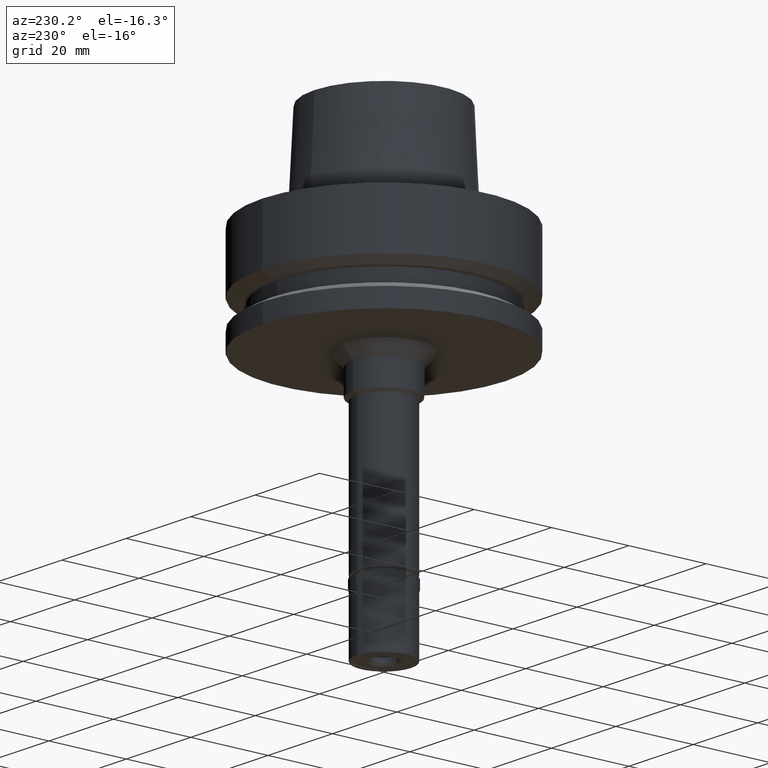
[diagram: clean part render]
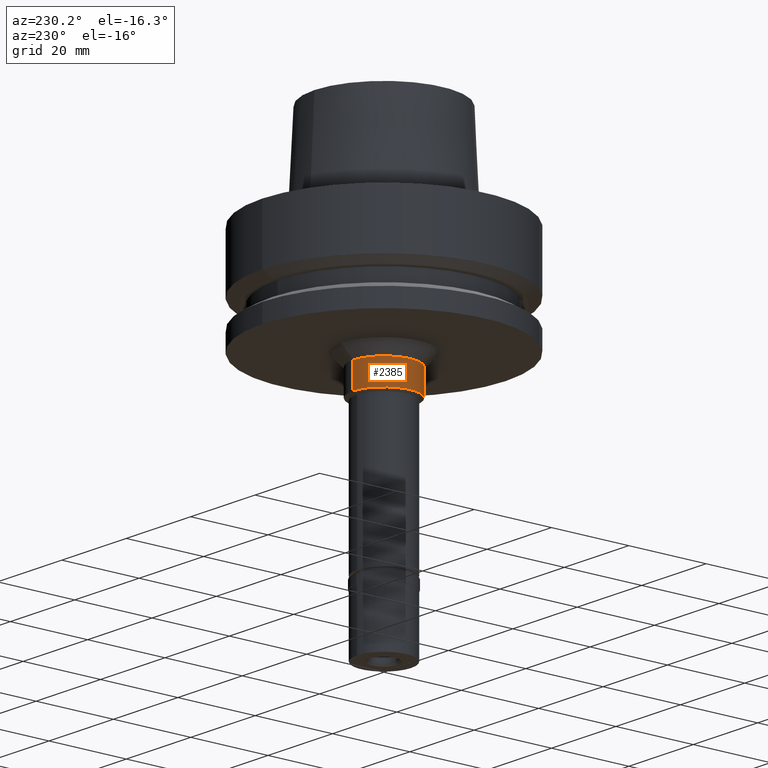
[diagram: same view with one face highlighted and labeled with its STEP entity id]
A machine part, auxiliary view. The second image highlights one B-rep face of the part: STEP entity #2385.
In plain terms, the highlighted cylindrical surface (partial cylindrical patch) has radius 8 mm, axis along (0, 0, 1).
Its self-contained STEP definition (entity closure, byte-faithful):
#35 = DIRECTION ( 'NONE',  ( 0.0000000000000000000, 1.000000000000000000, 0.0000000000000000000 ) ) ;
#58 = DIRECTION ( 'NONE',  ( 0.0000000000000000000, -1.747966290477999900E-13, -1.000000000000000000 ) ) ;
#130 = AXIS2_PLACEMENT_3D ( 'NONE', #265, #1143, #35 ) ;
#250 = CARTESIAN_POINT ( 'NONE',  ( 0.0000000000000000000, 0.0000000000000000000, -29.00000000000000000 ) ) ;
#257 = CARTESIAN_POINT ( 'NONE',  ( 0.0000000000000000000, 8.000000000001000089, -35.42264973081000079 ) ) ;
#265 = CARTESIAN_POINT ( 'NONE',  ( 0.0000000000000000000, 0.0000000000000000000, -35.42264973081000079 ) ) ;
#289 = CARTESIAN_POINT ( 'NONE',  ( 0.0000000000000000000, -8.000000000000000000, -29.00000000000000000 ) ) ;
#383 = AXIS2_PLACEMENT_3D ( 'NONE', #250, #1115, #1986 ) ;
#434 = EDGE_CURVE ( 'NONE', #1814, #2529, #2555, .T. ) ;
#435 = VECTOR ( 'NONE', #58, 1000.000000000000000 ) ;
#436 = EDGE_CURVE ( 'NONE', #1545, #1814, #1539, .T. ) ;
#490 = ORIENTED_EDGE ( 'NONE', *, *, #1686, .F. ) ;
#692 = CARTESIAN_POINT ( 'NONE',  ( 0.0000000000000000000, -8.000000000000000000, -29.00000000000000000 ) ) ;
#976 = CIRCLE ( 'NONE', #383, 8.000000000000000000 ) ;
#1051 = CARTESIAN_POINT ( 'NONE',  ( 0.0000000000000000000, -8.000000000002000178, -35.42264973081000079 ) ) ;
#1058 = AXIS2_PLACEMENT_3D ( 'NONE', #1852, #2676, #1375 ) ;
#1115 = DIRECTION ( 'NONE',  ( 0.0000000000000000000, 0.0000000000000000000, -1.000000000000000000 ) ) ;
#1143 = DIRECTION ( 'NONE',  ( 0.0000000000000000000, 0.0000000000000000000, 1.000000000000000000 ) ) ;
#1165 = FACE_OUTER_BOUND ( 'NONE', #2284, .T. ) ;
#1263 = CARTESIAN_POINT ( 'NONE',  ( 0.0000000000000000000, 8.000000000000000000, -29.00000000000000000 ) ) ;
#1375 = DIRECTION ( 'NONE',  ( 0.0000000000000000000, 1.000000000000000000, 0.0000000000000000000 ) ) ;
#1397 = VECTOR ( 'NONE', #2013, 1000.000000000000000 ) ;
#1420 = CYLINDRICAL_SURFACE ( 'NONE', #1058, 8.000000000000000000 ) ;
#1539 = LINE ( 'NONE', #2396, #1397 ) ;
#1545 = VERTEX_POINT ( 'NONE', #1263 ) ;
#1561 = LINE ( 'NONE', #289, #435 ) ;
#1657 = ORIENTED_EDGE ( 'NONE', *, *, #436, .T. ) ;
#1686 = EDGE_CURVE ( 'NONE', #1837, #2529, #1561, .T. ) ;
#1814 = VERTEX_POINT ( 'NONE', #257 ) ;
#1837 = VERTEX_POINT ( 'NONE', #692 ) ;
#1852 = CARTESIAN_POINT ( 'NONE',  ( 0.0000000000000000000, 0.0000000000000000000, -91.55000000000001137 ) ) ;
#1986 = DIRECTION ( 'NONE',  ( 0.0000000000000000000, -1.000000000000000000, 0.0000000000000000000 ) ) ;
#2013 = DIRECTION ( 'NONE',  ( 0.0000000000000000000, 1.747966290477999900E-13, -1.000000000000000000 ) ) ;
#2232 = ORIENTED_EDGE ( 'NONE', *, *, #2333, .T. ) ;
#2260 = ORIENTED_EDGE ( 'NONE', *, *, #434, .T. ) ;
#2284 = EDGE_LOOP ( 'NONE', ( #2260, #490, #2232, #1657 ) ) ;
#2333 = EDGE_CURVE ( 'NONE', #1837, #1545, #976, .T. ) ;
#2385 = ADVANCED_FACE ( 'NONE', ( #1165 ), #1420, .T. ) ;
#2396 = CARTESIAN_POINT ( 'NONE',  ( 0.0000000000000000000, 8.000000000000000000, -29.00000000000000000 ) ) ;
#2529 = VERTEX_POINT ( 'NONE', #1051 ) ;
#2555 = CIRCLE ( 'NONE', #130, 8.000000000002000178 ) ;
#2676 = DIRECTION ( 'NONE',  ( 0.0000000000000000000, 0.0000000000000000000, 1.000000000000000000 ) ) ;